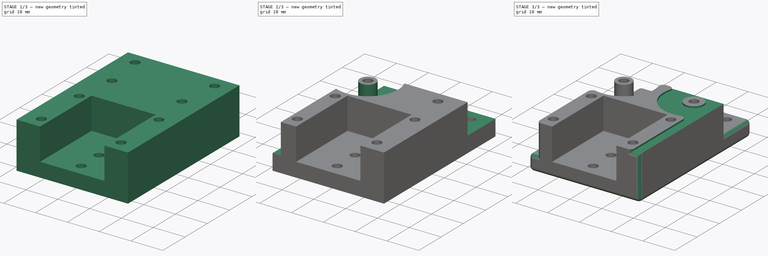
[diagram: build sequence overview — one tinted view per stage of 3, left to right]
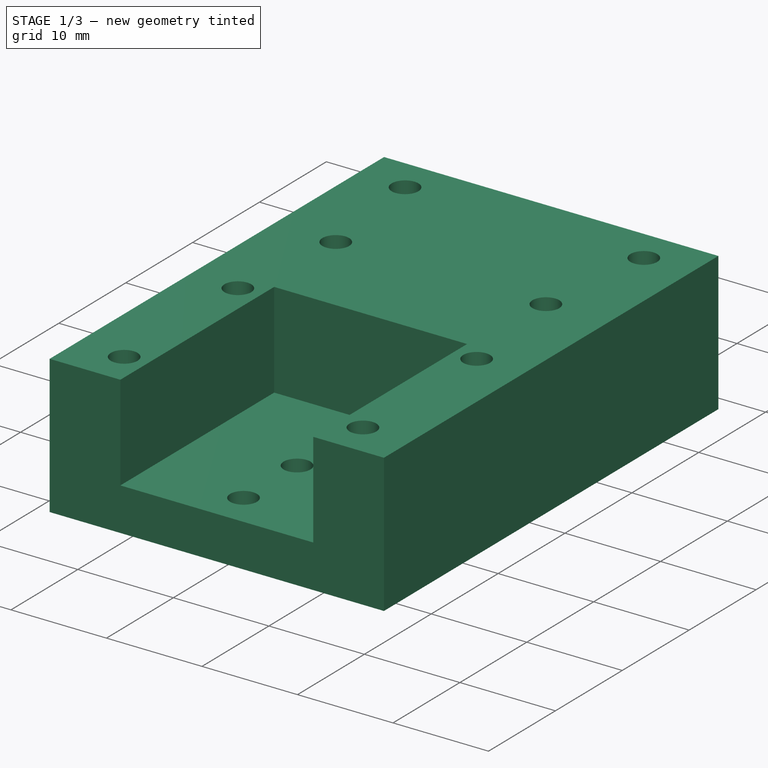
[diagram: stage 1 of 3 — iso view after this stage's code; geometry added in this stage tinted green]
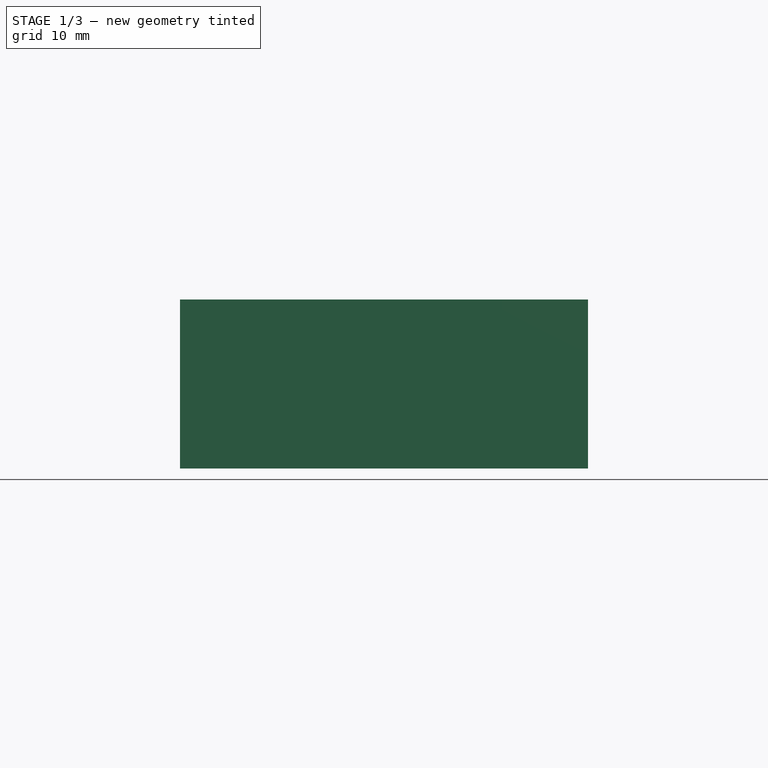
[diagram: stage 1 of 3 — front view after this stage's code; geometry added in this stage tinted green]
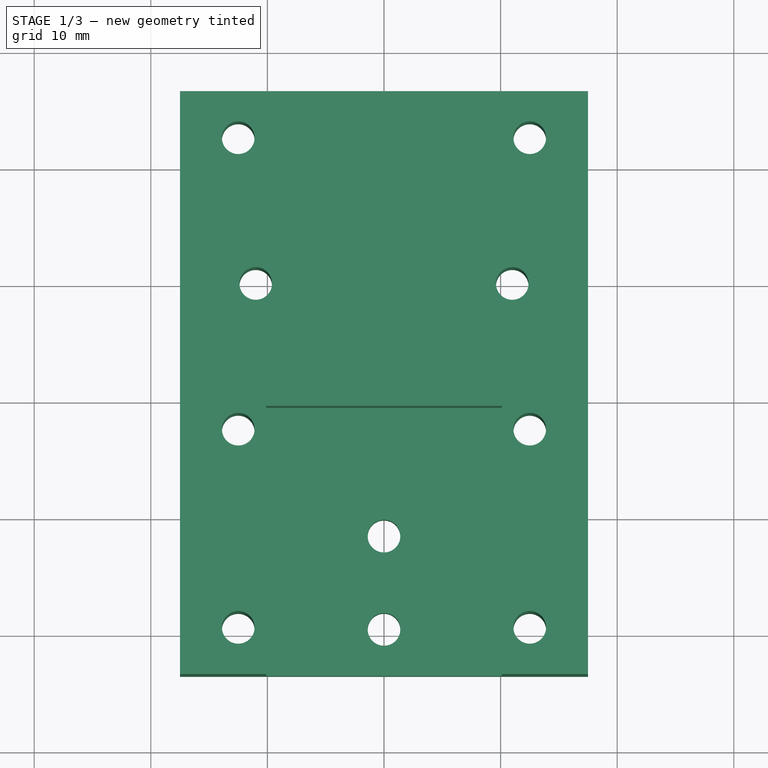
[diagram: stage 1 of 3 — top view after this stage's code; geometry added in this stage tinted green]
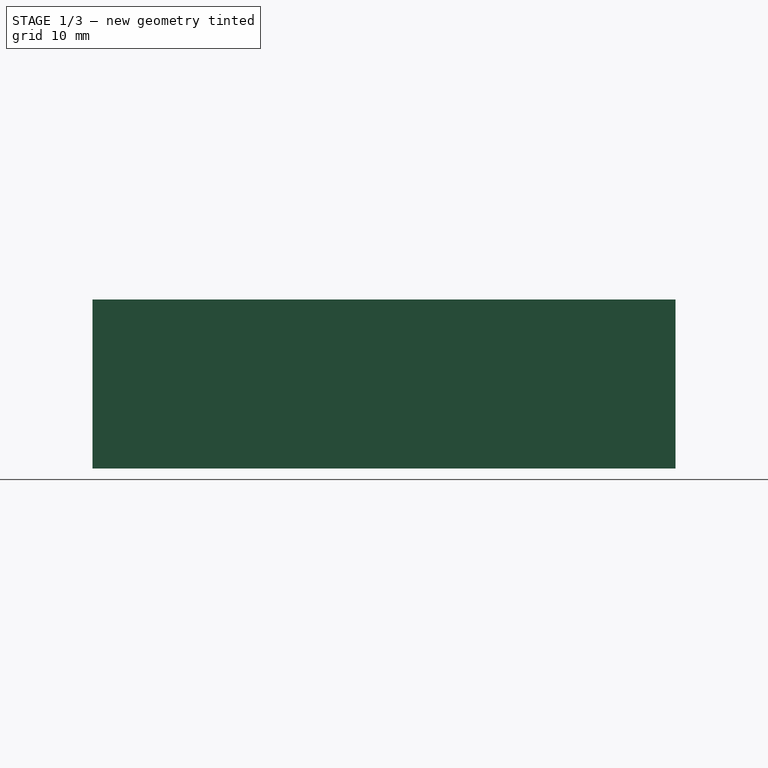
[diagram: stage 1 of 3 — right view after this stage's code; geometry added in this stage tinted green]
FCSTD DOCUMENT  (FreeCAD 1.1R39896 (Git))
Label: xy_holder
License: All rights reserved
LicenseURL: https://en.wikipedia.org/wiki/All_rights_reserved
objects: Sketcher::SketchObject×5, PartDesign::Pocket×4, PartDesign::Pad×1, PartDesign::Fillet×1, PartDesign::Body×1, App::Link×1, App::Point×1
note: 29 computed .brp shape members not serialized (recipe doc carries the construction recipe); baked Part::Feature solids carry a one-line shape summary decoded from their .brp
EXTERNAL_REF file=Masterfile.FCStd obj=Spreadsheet

FEATURE [Sketcher::SketchObject] Sketch
  ArcFitTolerance = 0
  AttachmentSupport = -> [XY_Plane]
  ExternalTypes = [0]
  FullyConstrained = false
  MakeInternals = false
  MapMode = 5
  expr: Constraints[29] = 8
  expr: Constraints[30] = <<LinkDimensions>>.railCarrierHandle
  expr: Constraints[31] = <<LinkDimensions>>.beamWidth + 2
  expr: Constraints[39] = <<LinkDimensions>>.xyHolderWidth
  expr: Constraints[40] = <<LinkDimensions>>.xyHolderLength
  expr: Constraints[44] = 4
  expr: Constraints[45] = <<LinkDimensions>>.drillDiameter - 0.2
  expr: Constraints[8] = <<LinkDimensions>>.railCarrierHandle
  expr: Constraints[9] = <<LinkDimensions>>.railCarrierHandle
  sketch-geometry (19):
    g0: LineSegment [constr] StartX=-12.5 StartY=12.5 StartZ=0 EndX=-12.5 EndY=-12.5 EndZ=0
    g1: LineSegment [constr] StartX=-12.5 StartY=-12.5 StartZ=0 EndX=12.5 EndY=-12.5 EndZ=0
    g2: LineSegment [constr] StartX=12.5 StartY=-12.5 StartZ=0 EndX=12.5 EndY=12.5 EndZ=0
    g3: LineSegment [constr] StartX=12.5 StartY=12.5 StartZ=0 EndX=-12.5 EndY=12.5 EndZ=0
    g4: Circle CenterX=-12.5 CenterY=12.5 CenterZ=0 NormalX=0 NormalY=0 NormalZ=1 AngleXU=0 Radius=1.4
    g5: Circle CenterX=12.5 CenterY=12.5 CenterZ=0 NormalX=0 NormalY=0 NormalZ=1 AngleXU=0 Radius=1.4
    g6: Circle CenterX=-12.5 CenterY=-12.5 CenterZ=0 NormalX=0 NormalY=0 NormalZ=1 AngleXU=0 Radius=1.4
    g7: Circle CenterX=12.5 CenterY=-12.5 CenterZ=0 NormalX=0 NormalY=0 NormalZ=1 AngleXU=0 Radius=1.4
    g8: Circle CenterX=0 CenterY=-21.5 CenterZ=0 NormalX=0 NormalY=0 NormalZ=1 AngleXU=0 Radius=1.4
    g9: Circle CenterX=0 CenterY=-29.5 CenterZ=0 NormalX=0 NormalY=0 NormalZ=1 AngleXU=0 Radius=1.4
    g10: Circle CenterX=-12.5 CenterY=-29.5 CenterZ=0 NormalX=0 NormalY=0 NormalZ=1 AngleXU=0 Radius=1.4
    g11: Circle CenterX=12.5 CenterY=-29.5 CenterZ=0 NormalX=0 NormalY=0 NormalZ=1 AngleXU=0 Radius=1.4
    g12: Circle CenterX=-11 CenterY=0 CenterZ=0 NormalX=0 NormalY=0 NormalZ=1 AngleXU=0 Radius=1.4
    g13: Circle CenterX=11 CenterY=0 CenterZ=0 NormalX=0 NormalY=0 NormalZ=1 AngleXU=0 Radius=1.4
    g14: LineSegment StartX=-17.5 StartY=16.5 StartZ=0 EndX=-17.5 EndY=-33.5 EndZ=0
    g15: LineSegment StartX=-17.5 StartY=-33.5 StartZ=0 EndX=17.5 EndY=-33.5 EndZ=0
    g16: LineSegment StartX=17.5 StartY=-33.5 StartZ=0 EndX=17.5 EndY=16.5 EndZ=0
    g17: LineSegment StartX=17.5 StartY=16.5 StartZ=0 EndX=-17.5 EndY=16.5 EndZ=0
    g18: LineSegment [constr] StartX=-50.4353 StartY=-8.5 StartZ=0 EndX=51.1513 EndY=-8.5 EndZ=0
  constraints (46):
    c: Coincident(g0,g1)
    c: Coincident(g1,g2)
    c: Coincident(g2,g3)
    c: Coincident(g3,g0)
    c: Vertical(g0)
    c: Vertical(g2)
    c: Horizontal(g1)
    c: Horizontal(g3)
    c: Distance(g0,g2) = 25
    c: Distance(g1,g3) = 25
    c: Symmetric(g0,g1,g-1)
    c: Coincident(g4,g0)
    c: Coincident(g5,g2)
    c: Coincident(g6,g0)
    c: Coincident(g7,g1)
    c: PointOnObject(g8,g-2)
    c: PointOnObject(g9,g-2)
    c: PointOnObject(g12,g-1)
    c: Equal(g4,g5)
    c: Equal(g5,g13)
    c: Equal(g13,g12)
    c: Equal(g12,g6)
    c: Equal(g6,g7)
    c: Equal(g7,g8)
    c: Equal(g8,g9)
    c: Equal(g10,g9)
    c: Symmetric(g10,g11,g-2)
    c: Symmetric(g12,g13,g-2)
    c: Horizontal(g10,g9)
    c: DistanceY(g9,g8) = 8
    c: DistanceX(g10,g11) = 25
    c: DistanceX(g12,g13) = 22
    c: Equal(g11,g7)
    c: Coincident(g14,g15)
    c: Coincident(g15,g16)
    c: Coincident(g16,g17)
    c: Coincident(g17,g14)
    c: Vertical(g14)
    c: Horizontal(g17)
    c: Distance(g14,g16) = 35
    c: Distance(g15,g17) = 50
    c: Symmetric(g14,g15,g-2)
    c: Symmetric(g5,g11,g18)
    c: Symmetric(g16,g15,g18)
    c: DistanceY(g15,g11) = 4
    c: Diameter(g4) = 2.8
FEATURE [PartDesign::Pad] Pad
  Direction = (0,0,1)
  Length = 14.5
  Length2 = 10
  Profile = -> Sketch
  ReferenceAxis = -> Sketch [N_Axis]
  Suppressed = false
  Type = 0
  expr: Length = <<LinkDimensions>>.xyHolderHeight
FEATURE [Sketcher::SketchObject] Sketch001
  ArcFitTolerance = 0
  AttachmentSupport = -> [Pad]
  ExternalGeometry = -> [Pad]
  ExternalTypes = [0]
  FullyConstrained = true
  MakeInternals = false
  MapMode = 5
  Placement = pos=(0,-33.5,0) rot=(1,0,0;1.5708rad)
  expr: Constraints[8] = <<LinkDimensions>>.beamWidth + 0.2
  expr: Constraints[9] = <<LinkDimensions>>.beamWidth / 2
  sketch-geometry (4):
    g0: LineSegment StartX=-10.1 StartY=14.5 StartZ=0 EndX=-10.1 EndY=4.5 EndZ=0
    g1: LineSegment StartX=-10.1 StartY=4.5 StartZ=0 EndX=10.1 EndY=4.5 EndZ=0
    g2: LineSegment StartX=10.1 StartY=4.5 StartZ=0 EndX=10.1 EndY=14.5 EndZ=0
    g3: LineSegment StartX=10.1 StartY=14.5 StartZ=0 EndX=-10.1 EndY=14.5 EndZ=0
  constraints (11):
    c: Coincident(g0,g1)
    c: Coincident(g1,g2)
    c: Coincident(g2,g3)
    c: Coincident(g3,g0)
    c: Vertical(g0)
    c: Vertical(g2)
    c: Horizontal(g1)
    c: Symmetric(g2,g0,g-2)
    c: DistanceX(g3,g3) = 20.2
    c: DistanceY(g2,g2) = 10
    c: PointOnObject(g0,g-3)
FEATURE [PartDesign::Pocket] Pocket
  BaseFeature = -> Pad
  Direction = (0,1,-2e-16)
  Length = 23
  Length2 = 5
  Profile = -> Sketch001
  ReferenceAxis = -> Sketch001 [N_Axis]
  Suppressed = false
  Type = 0
  expr: Length = <<LinkDimensions>>.beamWidth + 3
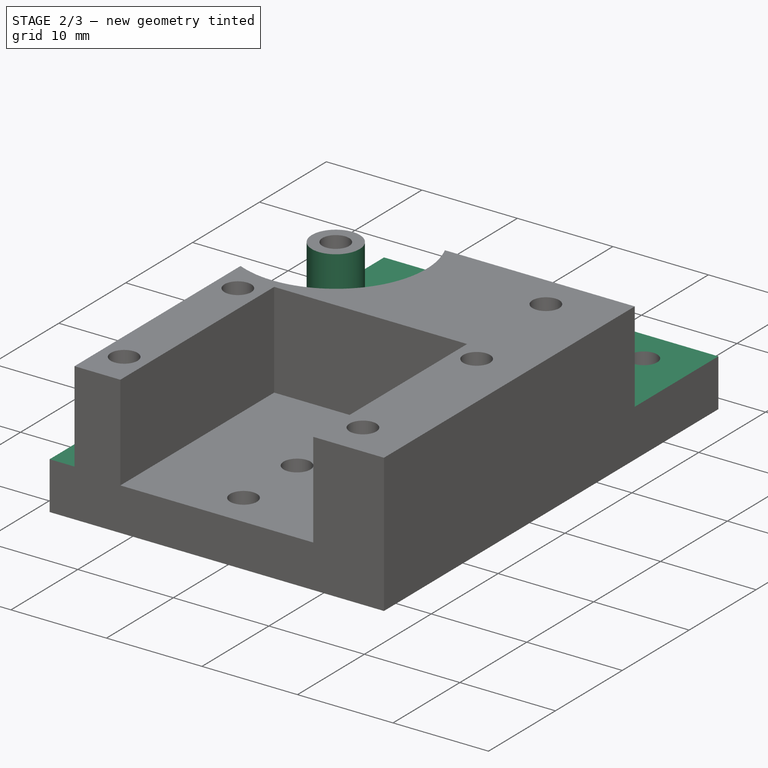
[diagram: stage 2 of 3 — iso view after this stage's code; geometry added in this stage tinted green]
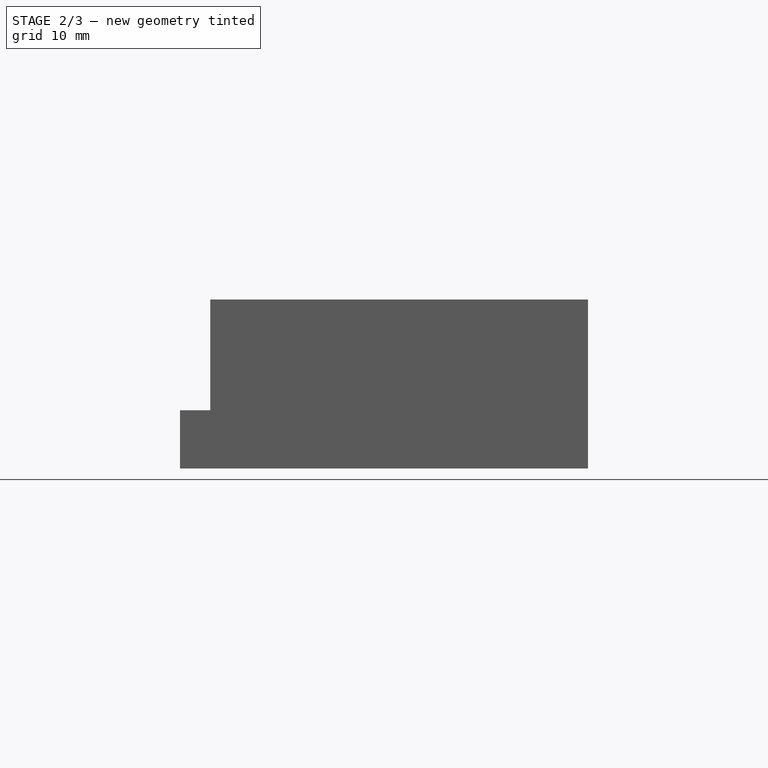
[diagram: stage 2 of 3 — front view after this stage's code; geometry added in this stage tinted green]
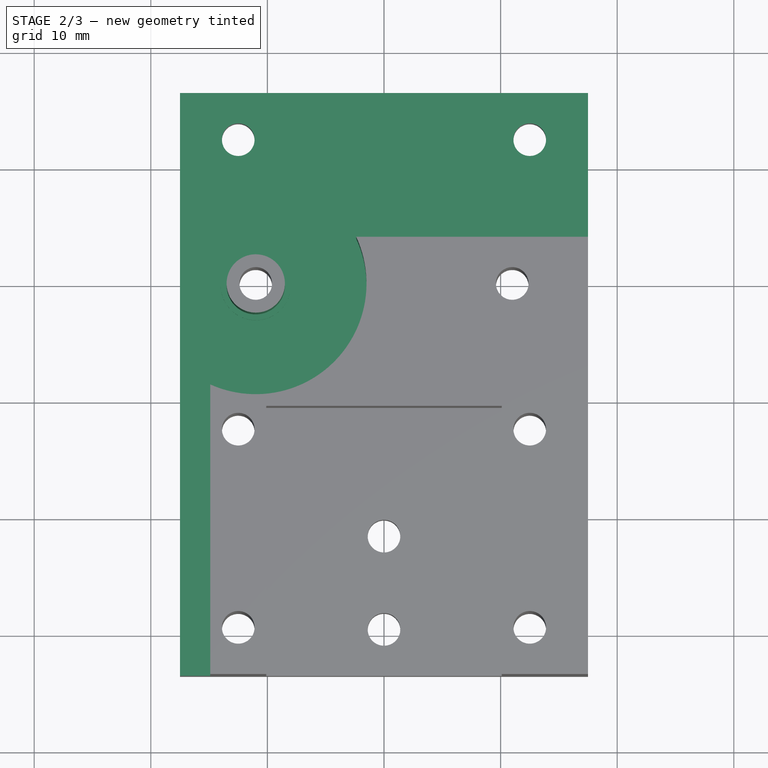
[diagram: stage 2 of 3 — top view after this stage's code; geometry added in this stage tinted green]
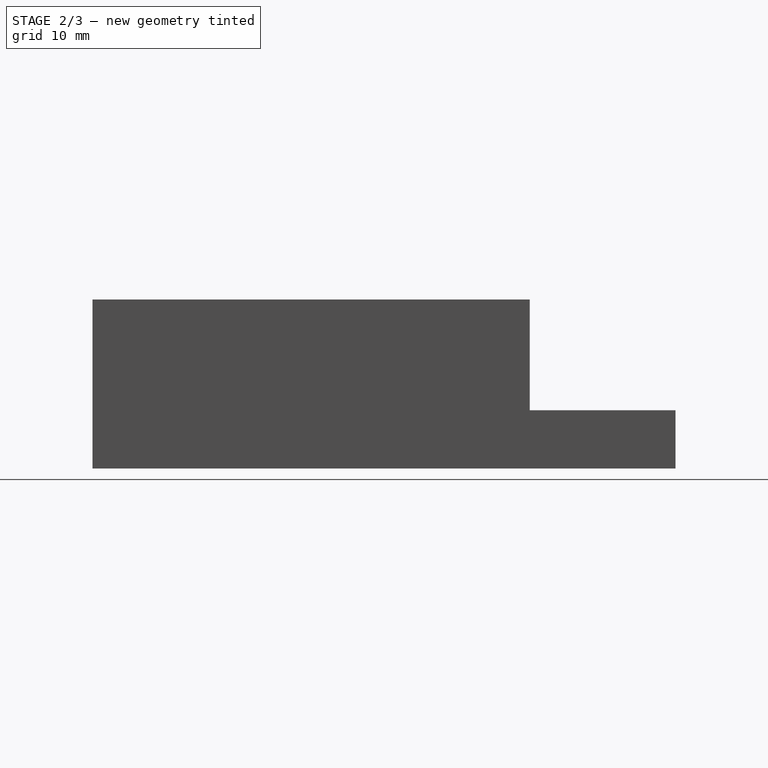
[diagram: stage 2 of 3 — right view after this stage's code; geometry added in this stage tinted green]
FEATURE [Sketcher::SketchObject] Sketch002
  ArcFitTolerance = 0
  AttachmentSupport = -> [Pocket]
  ExternalGeometry = -> [Pocket]
  ExternalTypes = [0]
  FullyConstrained = true
  MakeInternals = false
  MapMode = 5
  Placement = pos=(0,0,14.5) rot=(0,0,1;0rad)
  expr: Constraints[24] = <<LinkDimensions>>.pulleyHole + 1
  expr: Constraints[25] = <<LinkDimensions>>.pulleyOuterDiameter + 1
  expr: Constraints[26] = <<LinkDimensions>>.pulleyHole + 3
  sketch-geometry (12):
    g0: Circle CenterX=-11 CenterY=0 CenterZ=0 NormalX=0 NormalY=0 NormalZ=1 AngleXU=0 Radius=3
    g1: Circle [constr] CenterX=11 CenterY=0 CenterZ=0 NormalX=0 NormalY=0 NormalZ=1 AngleXU=0 Radius=4
    g2: LineSegment StartX=-14.9 StartY=-33.5 StartZ=0 EndX=-14.9 EndY=-8.66256 EndZ=0
    g3: Circle [constr] CenterX=-11 CenterY=0 CenterZ=0 NormalX=0 NormalY=0 NormalZ=1 AngleXU=0 Radius=4
    g4: LineSegment StartX=-14.9 StartY=-33.5 StartZ=0 EndX=-17.5 EndY=-33.5 EndZ=0
    g5: LineSegment StartX=-17.5 StartY=-33.5 StartZ=0 EndX=-17.5 EndY=16.5 EndZ=0
    g6: LineSegment StartX=-17.5 StartY=16.5 StartZ=0 EndX=17.5 EndY=16.5 EndZ=0
    g7: LineSegment StartX=17.5 StartY=16.5 StartZ=0 EndX=17.5 EndY=4 EndZ=0
    g8: LineSegment StartX=17.5 StartY=4 StartZ=0 EndX=-2.38316 EndY=4 EndZ=0
    g9: LineSegment [constr] StartX=-12.5 StartY=-12.5 StartZ=0 EndX=-12.5 EndY=-29.5 EndZ=0
    g10: ArcOfCircle CenterX=-11 CenterY=0 CenterZ=0 NormalX=0 NormalY=0 NormalZ=1 AngleXU=0 Radius=9.5 StartAngle=4.28936 EndAngle=6.71779
    g11: Circle [constr] CenterX=-11 CenterY=0 CenterZ=0 NormalX=0 NormalY=0 NormalZ=1 AngleXU=0 Radius=9.5
  constraints (27):
    c: Coincident(g0,g-3)
    c: Coincident(g1,g-4)
    c: Vertical(g2)
    c: Coincident(g3,g0)
    c: Equal(g1,g3)
    c: Coincident(g2,g4)
    c: Coincident(g4,g-8)
    c: Coincident(g4,g5)
    c: Coincident(g5,g-6)
    c: Coincident(g5,g6)
    c: Coincident(g6,g-7)
    c: Coincident(g6,g7)
    c: PointOnObject(g7,g-7)
    c: Coincident(g7,g8)
    c: Horizontal(g8)
    c: Tangent(g8,g1)
    c: Coincident(g9,g-10)
    c: Coincident(g9,g-9)
    c: Symmetric(g-8,g2,g9)
    c: Coincident(g10,g0)
    c: Coincident(g10,g8)
    c: Coincident(g11,g0)
    c: PointOnObject(g8,g11)
    c: Coincident(g2,g10)
    c: Diameter(g0) = 6
    c: Diameter(g11) = 19
    c: Diameter(g1) = 8
FEATURE [PartDesign::Pocket] Pocket001
  BaseFeature = -> Pocket
  Direction = (0,0,-1)
  Length = 9.5
  Length2 = 5
  Profile = -> Sketch002
  ReferenceAxis = -> Sketch002 [N_Axis]
  Suppressed = false
  Type = 0
  expr: Length = <<LinkDimensions>>.pulleyHeight + 0.5
FEATURE [Sketcher::SketchObject] Sketch003
  ArcFitTolerance = 0
  AttachmentSupport = -> [Pocket001]
  ExternalGeometry = -> [Pocket001]
  ExternalTypes = [0]
  FullyConstrained = true
  MakeInternals = false
  MapMode = 5
  Placement = pos=(0,0,14.5) rot=(0,0,1;0rad)
  expr: Constraints[2] = <<LinkDimensions>>.pulleyHole
  expr: Constraints[3] = <<LinkDimensions>>.pulleyHole + 1
  sketch-geometry (2):
    g0: Circle CenterX=-11 CenterY=0 CenterZ=0 NormalX=0 NormalY=0 NormalZ=1 AngleXU=0 Radius=2.5
    g1: Circle CenterX=-11 CenterY=0 CenterZ=0 NormalX=0 NormalY=0 NormalZ=1 AngleXU=0 Radius=3
  constraints (4):
    c: Coincident(g0,g-3)
    c: Coincident(g1,g0)
    c: Diameter(g0) = 5
    c: Diameter(g1) = 6
FEATURE [PartDesign::Pocket] Pocket002
  BaseFeature = -> Pocket001
  Direction = (0,0,-1)
  Length = 9
  Length2 = 5
  Profile = -> Sketch003
  ReferenceAxis = -> Sketch003 [N_Axis]
  Suppressed = false
  Type = 0
  expr: Length = <<LinkDimensions>>.pulleyHeight
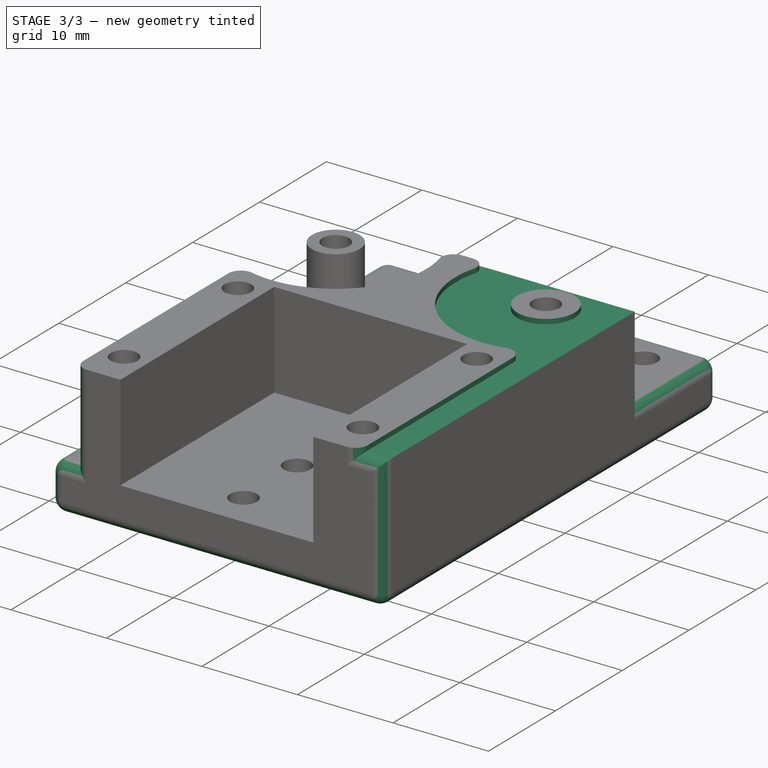
[diagram: stage 3 of 3 — iso view after this stage's code; geometry added in this stage tinted green]
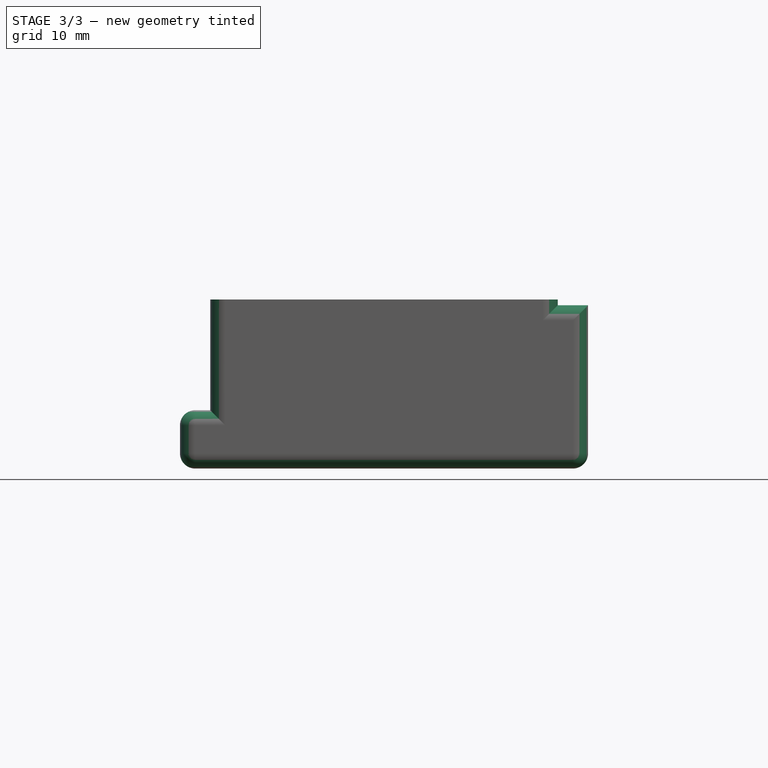
[diagram: stage 3 of 3 — front view after this stage's code; geometry added in this stage tinted green]
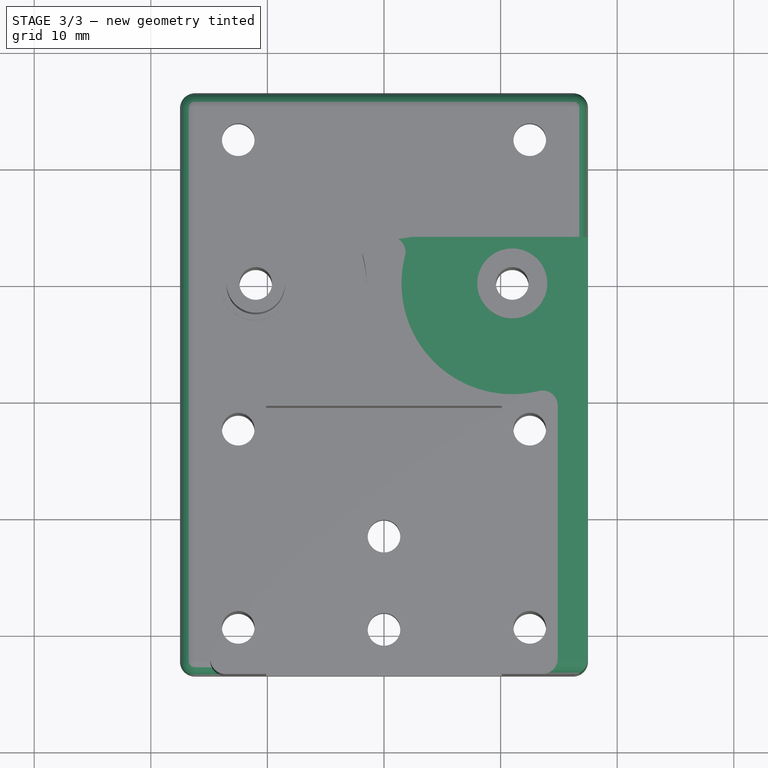
[diagram: stage 3 of 3 — top view after this stage's code; geometry added in this stage tinted green]
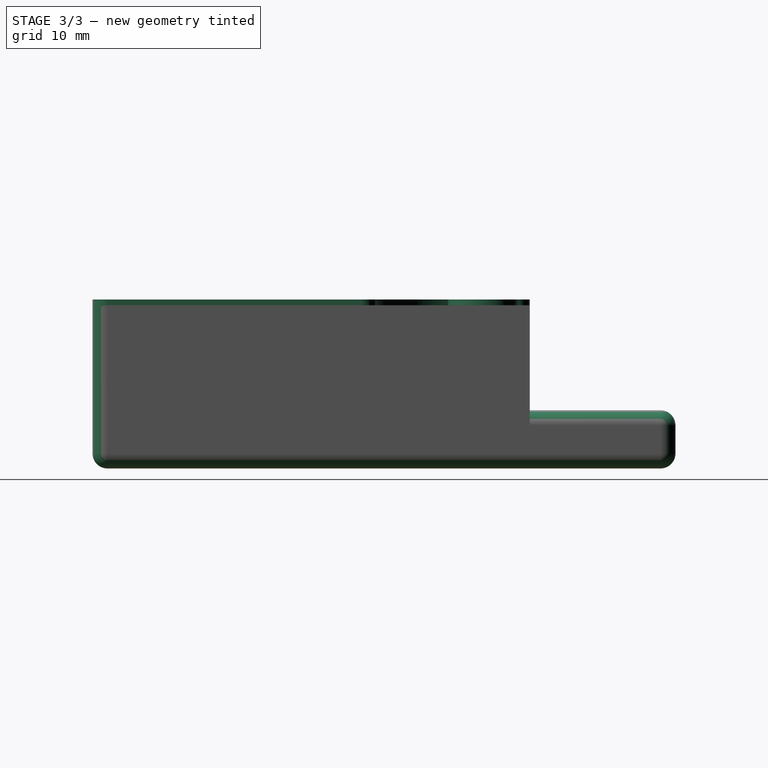
[diagram: stage 3 of 3 — right view after this stage's code; geometry added in this stage tinted green]
FEATURE [Sketcher::SketchObject] Sketch004
  ArcFitTolerance = 0
  AttachmentSupport = -> [Pocket002]
  ExternalGeometry = -> [Pocket002]
  ExternalTypes = [0]
  FullyConstrained = true
  MakeInternals = false
  MapMode = 5
  Placement = pos=(0,0,14.5) rot=(0,0,1;0rad)
  expr: Constraints[10] = <<LinkDimensions>>.pulleyOuterDiameter + 1
  expr: Constraints[11] = <<LinkDimensions>>.pulleyHole + 1
  expr: Constraints[12] = <<LinkDimensions>>.clueDiameter
  expr: Constraints[13] = <<LinkDimensions>>.xyHolderLength
  expr: Constraints[7] = <<LinkDimensions>>.clueDiameter / 2 - 0.1
  sketch-geometry (5):
    g0: Circle CenterX=11 CenterY=0 CenterZ=0 NormalX=0 NormalY=0 NormalZ=1 AngleXU=0 Radius=3
    g1: ArcOfCircle CenterX=11 CenterY=0 CenterZ=0 NormalX=0 NormalY=0 NormalZ=1 AngleXU=0 Radius=9.5 StartAngle=5.92588 EndAngle=11.4186
    g2: LineSegment StartX=14.9 StartY=-8.66256 StartZ=0 EndX=14.9 EndY=-53.3226 EndZ=0
    g3: LineSegment StartX=14.9 StartY=-53.3226 StartZ=0 EndX=19.9 EndY=-53.3226 EndZ=0
    g4: LineSegment StartX=19.9 StartY=-53.3226 StartZ=0 EndX=19.9 EndY=-3.32265 EndZ=0
  constraints (14):
    c: Coincident(g0,g-3)
    c: Coincident(g1,g0)
    c: Coincident(g2,g3)
    c: Coincident(g3,g4)
    c: Vertical(g2)
    c: Vertical(g4)
    c: Horizontal(g3)
    c: DistanceX(g-4,g2) = 2.4
    c: Coincident(g1,g4)
    c: Coincident(g2,g1)
    c: Diameter(g1) = 19
    c: Diameter(g0) = 6
    c: DistanceX(g3,g3) = 5
    c: DistanceY(g4,g4) = 50
FEATURE [PartDesign::Pocket] Pocket003
  BaseFeature = -> Pocket002
  Direction = (0,0,-1)
  Length = 0.5
  Length2 = 5
  Profile = -> Sketch004
  ReferenceAxis = -> Sketch004 [N_Axis]
  Suppressed = false
  Type = 0
  expr: Length = 0.5 mm
FEATURE [PartDesign::Fillet] Fillet
  Base = -> Pocket003 [Edge7,Edge32,Edge36,Edge31,Edge3,Edge4,Edge1,Edge6,Edge5,Edge18,Edge2,Edge27,Edge26,Edge19,Edge20,Edge75,Edge76,Edge77,Edge62]
  BaseFeature = -> Pocket003
  Radius = 1.3
  SupportTransform = false
  Suppressed = false
  UseAllEdges = false
  expr: Radius = <<LinkDimensions>>.filletRadius
FEATURE [PartDesign::Body] Body
  AllowCompound = false
  Group = -> [Sketch,Pad,Sketch001,Pocket,Sketch002,Pocket001,Sketch003,Pocket002,Sketch004,Pocket003,Fillet]
  Origin = -> Origin
  Tip = -> Fillet
FEATURE [App::Link] Link  label="LinkDimensions"
  LinkedObject = -> <external Masterfile.FCStd>#Spreadsheet
FEATURE [App::Point] Origin001  label="Origin"
  Role = Origin
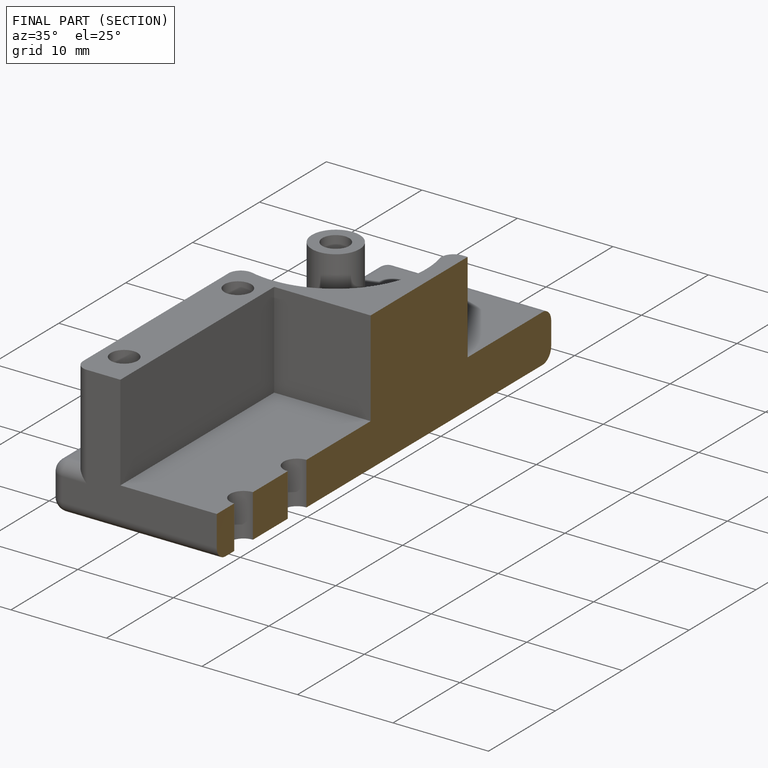
[diagram: finished part — half-section view (interior)]
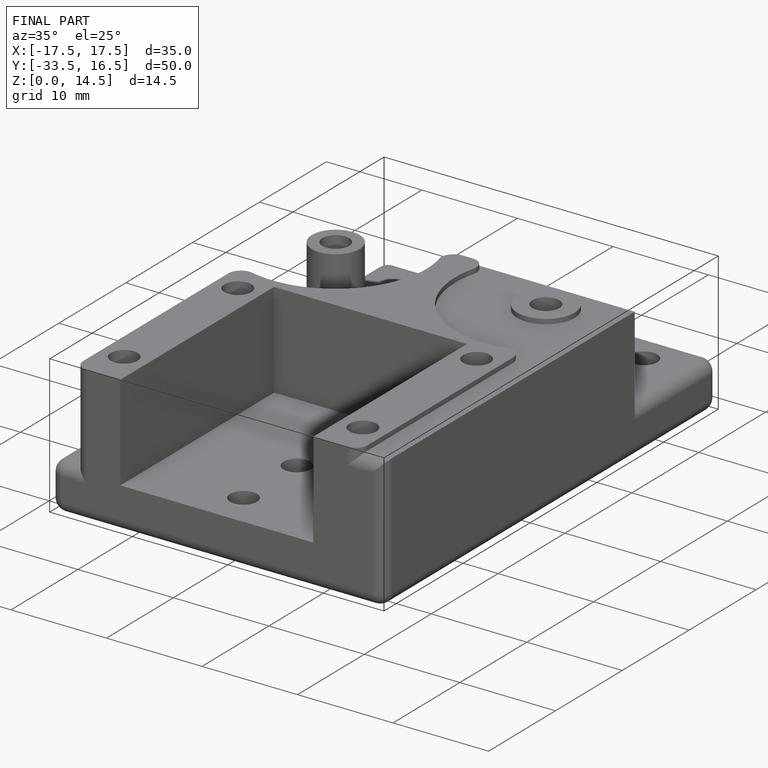
[diagram: finished part — iso view with bounding-box wireframe]
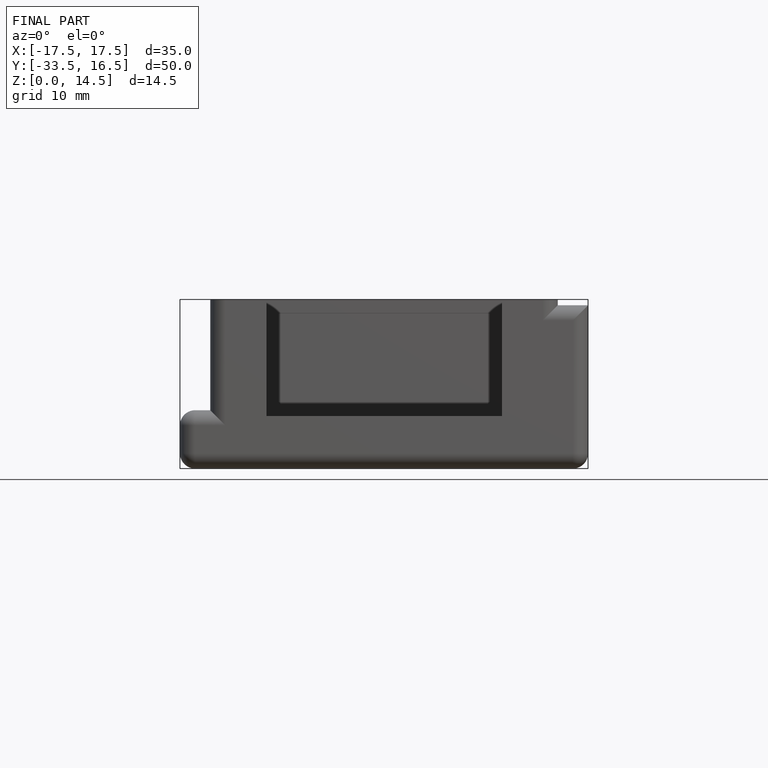
[diagram: finished part — front view with bounding-box wireframe]
